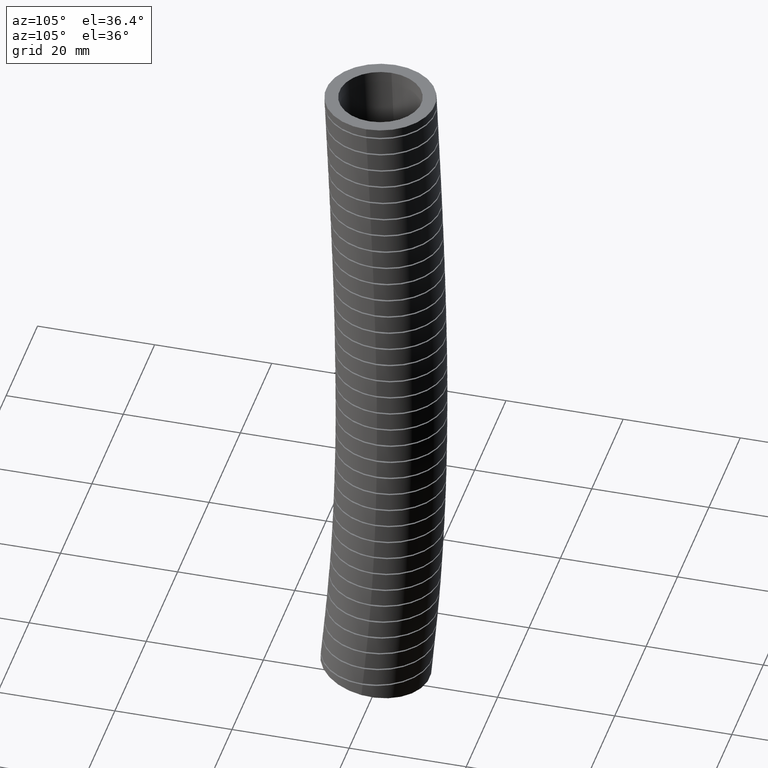
[diagram: clean part render]
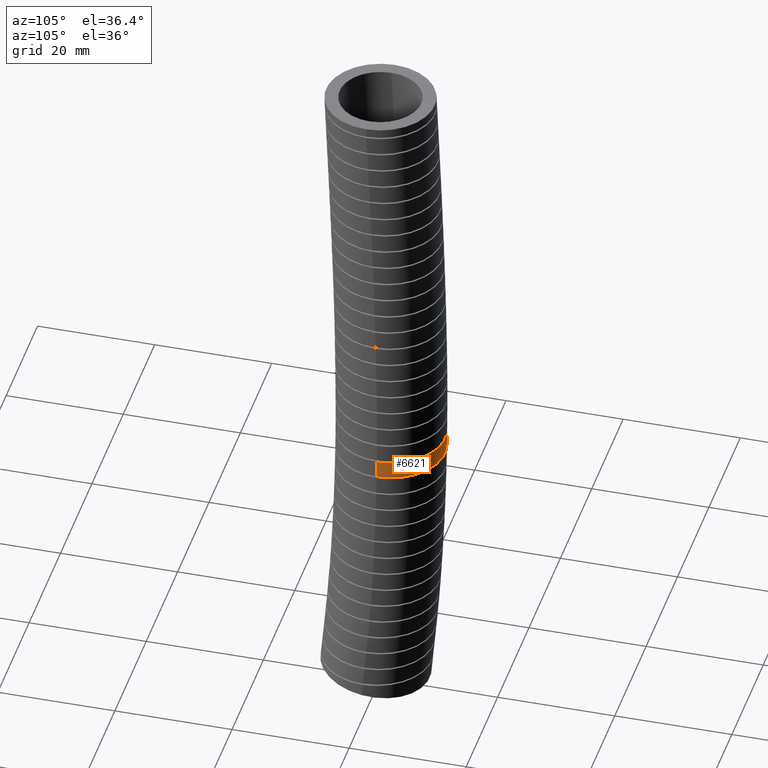
[diagram: same view with one face highlighted and labeled with its STEP entity id]
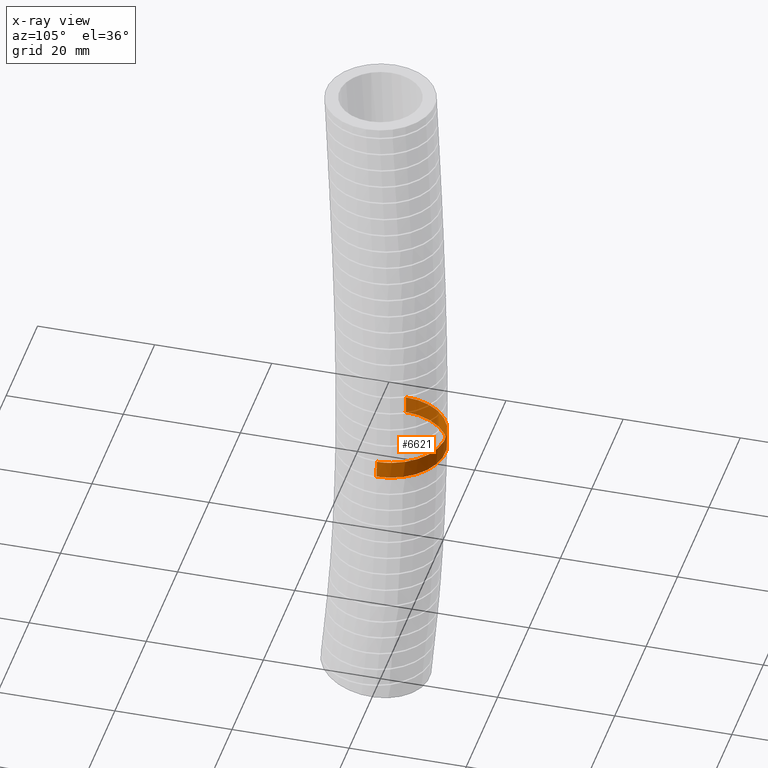
[diagram: x-ray of the same camera — body ghosted, the highlighted face saturated]
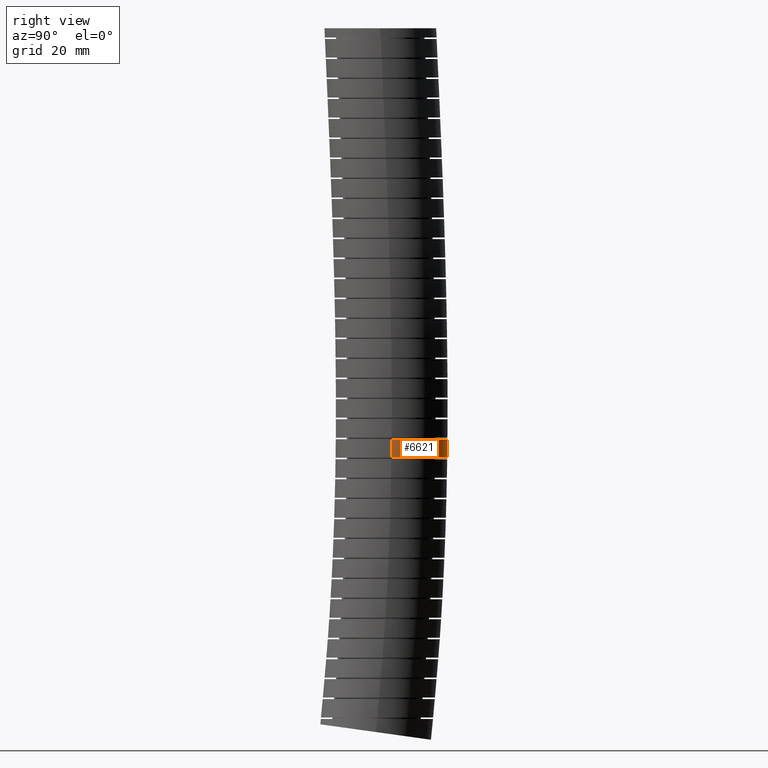
[diagram: same view with one face highlighted and labeled with its STEP entity id]
A machine part, auxiliary view. The second image highlights one B-rep face of the part: STEP entity #6621.
The next image is the same camera in x-ray: the body ghosted, the highlighted face saturated — about 29% of this face is hidden behind the body in this view.
A second angle (right view) of the same face is appended — the face is thin or edge-on in the first view.
In plain terms, the highlighted face is a freeform B-spline surface patch.
Its self-contained STEP definition (entity closure, byte-faithful):
#1 = VERTEX_POINT ( 'NONE', #936 ) ;
#2 = VERTEX_POINT ( 'NONE', #935 ) ;
#935 = CARTESIAN_POINT ( 'NONE',  ( 0.3649999999999999400, 0.07320606617404441800, -2.668720354668374700 ) ) ;
#936 = CARTESIAN_POINT ( 'NONE',  ( -0.3649999999999999900, 0.07320606617709402000, -2.668720354488106000 ) ) ;
#6606 = ORIENTED_EDGE ( 'NONE', *, *, #6613, .T. ) ;
#6608 = EDGE_LOOP ( 'NONE', ( #6612, #6606, #6611, #14719 ) ) ;
#6611 = ORIENTED_EDGE ( 'NONE', *, *, #18283, .T. ) ;
#6612 = ORIENTED_EDGE ( 'NONE', *, *, #18404, .F. ) ;
#6613 = EDGE_CURVE ( 'NONE', #1, #2, #12066, .T. ) ;
#6621 = ADVANCED_FACE ( 'NONE', ( #12212 ), #12268, .T. ) ;
#12066 = B_SPLINE_CURVE_WITH_KNOTS ( 'NONE', 3,
 ( #12136, #12135, #12134, #12133, #12132, #12131, #12130, #12129, #12128, #12127, #12126, #12125, #12124, #12123, #12122, #12121, #12120, #12119, #12118, #12117, #12116, #12115, #12114, #12113, #12112, #12111, #12181, #12180, #12179, #12178, #12177, #12176, #12175, #12174, #12173, #12172, #12171, #12170, #12169, #12168, #12167, #12166, #12165, #12164, #12163, #12162, #12161 ),
 .UNSPECIFIED., .F., .F.,
 ( 4, 2, 2, 2, 2, 2, 2, 2, 2, 2, 2, 1, 2, 2, 2, 2, 2, 2, 2, 2, 2, 2, 2, 4 ),
 ( 0.02927975161548969700, 0.03019481706856797000, 0.03110988252164624500, 0.03294001342780279000, 0.03477014433395934200, 0.03568520978703761800, 0.03660027524011588700, 0.03843040614627243900, 0.04026053705242899100, 0.04209066795858554300, 0.04300573341166381800, 0.04392079886474209400, 0.04483586431782037000, 0.04575092977089864600, 0.04758106067705520500, 0.04849612613013348100, 0.04941119158321175700, 0.05124132248936831600, 0.05215638794244659100, 0.05307145339552486700, 0.05490158430168141900, 0.05673171520783798500, 0.05764678066091626100, 0.05856184611399453700 ),
 .UNSPECIFIED. ) ;
#12111 = CARTESIAN_POINT ( 'NONE',  ( 0.05941850687262208200, 0.4331649458857727000, -2.668720354488106800 ) ) ;
#12112 = CARTESIAN_POINT ( 'NONE',  ( 0.04749589015965257500, 0.4349248595266277400, -2.668720354488104600 ) ) ;
#12113 = CARTESIAN_POINT ( 'NONE',  ( 0.02375430045063952500, 0.4372508819194463300, -2.668720354488104600 ) ) ;
#12114 = CARTESIAN_POINT ( 'NONE',  ( 4.027529231596551600E-006, 0.4384068036296945900, -2.668720354488102900 ) ) ;
#12115 = CARTESIAN_POINT ( 'NONE',  ( -0.02376340153715641700, 0.4372508600954948500, -2.668720354488104200 ) ) ;
#12116 = CARTESIAN_POINT ( 'NONE',  ( -0.04753955170522802800, 0.4349197101323114500, -2.668720354488104200 ) ) ;
#12117 = CARTESIAN_POINT ( 'NONE',  ( -0.05949774454792206700, 0.4331510362782838900, -2.668720354488107300 ) ) ;
#12118 = CARTESIAN_POINT ( 'NONE',  ( -0.09476493677838504500, 0.4261383699074591200, -2.668720354488106800 ) ) ;
#12119 = CARTESIAN_POINT ( 'NONE',  ( -0.1175129830525072100, 0.4192325297033180900, -2.668720354488106400 ) ) ;
#12120 = CARTESIAN_POINT ( 'NONE',  ( -0.1615134997035402000, 0.4010507176765552000, -2.668720354488106800 ) ) ;
#12121 = CARTESIAN_POINT ( 'NONE',  ( -0.1829467531072731200, 0.3896169040247807200, -2.668720354488104200 ) ) ;
#12122 = CARTESIAN_POINT ( 'NONE',  ( -0.2225913090509502300, 0.3631568275315265600, -2.668720354488104600 ) ) ;
#12123 = CARTESIAN_POINT ( 'NONE',  ( -0.2409796241373040300, 0.3481047620946218200, -2.668720354488108200 ) ) ;
#12124 = CARTESIAN_POINT ( 'NONE',  ( -0.2663849269867669700, 0.3227603004738652800, -2.668720354488106800 ) ) ;
#12125 = CARTESIAN_POINT ( 'NONE',  ( -0.2745191004397128400, 0.3138027094918401400, -2.668720354488107300 ) ) ;
#12126 = CARTESIAN_POINT ( 'NONE',  ( -0.2897143563914030800, 0.2953114625587307500, -2.668720354488107300 ) ) ;
#12127 = CARTESIAN_POINT ( 'NONE',  ( -0.2968127331542611000, 0.2857479714421067300, -2.668720354488104600 ) ) ;
#12128 = CARTESIAN_POINT ( 'NONE',  ( -0.3166410927686716900, 0.2561236216483556100, -2.668720354488105100 ) ) ;
#12129 = CARTESIAN_POINT ( 'NONE',  ( -0.3279337716689496000, 0.2351019868282232000, -2.668720354488104600 ) ) ;
#12130 = CARTESIAN_POINT ( 'NONE',  ( -0.3463968159717063500, 0.1906202841395762100, -2.668720354488105100 ) ) ;
#12131 = CARTESIAN_POINT ( 'NONE',  ( -0.3532957554398851200, 0.1678339095988528600, -2.668720354488105100 ) ) ;
#12132 = CARTESIAN_POINT ( 'NONE',  ( -0.3602771294218495300, 0.1328668962521809300, -2.668720354488104600 ) ) ;
#12133 = CARTESIAN_POINT ( 'NONE',  ( -0.3620389377832694500, 0.1210790141085834500, -2.668720354488104200 ) ) ;
#12134 = CARTESIAN_POINT ( 'NONE',  ( -0.3644041422518805600, 0.09723233091239176500, -2.668720354488102900 ) ) ;
#12135 = CARTESIAN_POINT ( 'NONE',  ( -0.3649999999999999900, 0.08515444808171307400, -2.668720354488105100 ) ) ;
#12136 = CARTESIAN_POINT ( 'NONE',  ( -0.3649999999999999900, 0.07320606617709402000, -2.668720354488106000 ) ) ;
#12161 = CARTESIAN_POINT ( 'NONE',  ( 0.3649999999999999400, 0.07320606617404441800, -2.668720354668374700 ) ) ;
#12162 = CARTESIAN_POINT ( 'NONE',  ( 0.3649999999999999400, 0.08525643554184268700, -2.668720354668375500 ) ) ;
#12163 = CARTESIAN_POINT ( 'NONE',  ( 0.3643978862681134200, 0.09731436780108915200, -2.668720354488106400 ) ) ;
#12164 = CARTESIAN_POINT ( 'NONE',  ( 0.3620339033328604500, 0.1211107198265952300, -2.668720354488106000 ) ) ;
#12165 = CARTESIAN_POINT ( 'NONE',  ( 0.3602741392829231200, 0.1328838871986791300, -2.668720354488104200 ) ) ;
#12166 = CARTESIAN_POINT ( 'NONE',  ( 0.3532946279497059000, 0.1678355246992258000, -2.668720354488104200 ) ) ;
#12167 = CARTESIAN_POINT ( 'NONE',  ( 0.3463572472116045500, 0.1907312428955710800, -2.668720354488106000 ) ) ;
#12168 = CARTESIAN_POINT ( 'NONE',  ( 0.3279035939240557700, 0.2351590041796645400, -2.668720354488106400 ) ) ;
#12169 = CARTESIAN_POINT ( 'NONE',  ( 0.3166420990251984100, 0.2561232757387369400, -2.668720354488108600 ) ) ;
#12170 = CARTESIAN_POINT ( 'NONE',  ( 0.2968039906385580000, 0.2857604540054544700, -2.668720354488108200 ) ) ;
#12171 = CARTESIAN_POINT ( 'NONE',  ( 0.2896967114145990200, 0.2953357650423634700, -2.668720354488104200 ) ) ;
#12172 = CARTESIAN_POINT ( 'NONE',  ( 0.2744671888176017900, 0.3138630381174330500, -2.668720354488104600 ) ) ;
#12173 = CARTESIAN_POINT ( 'NONE',  ( 0.2663419256355798500, 0.3228050821306274700, -2.668720354488107300 ) ) ;
#12174 = CARTESIAN_POINT ( 'NONE',  ( 0.2409789567001493200, 0.3481016516905077700, -2.668720354488107300 ) ) ;
#12175 = CARTESIAN_POINT ( 'NONE',  ( 0.2225980981113263600, 0.3631541609906983000, -2.668720354488107300 ) ) ;
#12176 = CARTESIAN_POINT ( 'NONE',  ( 0.1928248813193954600, 0.3830229836320413500, -2.668720354488106800 ) ) ;
#12177 = CARTESIAN_POINT ( 'NONE',  ( 0.1824753166941955300, 0.3892194979686181600, -2.668720354488107300 ) ) ;
#12178 = CARTESIAN_POINT ( 'NONE',  ( 0.1612891979380700100, 0.4005172397076918200, -2.668720354488106800 ) ) ;
#12179 = CARTESIAN_POINT ( 'NONE',  ( 0.1504944079907398500, 0.4056043746105504900, -2.668720354488106000 ) ) ;
#12180 = CARTESIAN_POINT ( 'NONE',  ( 0.1175219154949746600, 0.4192281016550825100, -2.668720354488106000 ) ) ;
#12181 = CARTESIAN_POINT ( 'NONE',  ( 0.09476171899900251400, 0.4261426897450509300, -2.668720354488106400 ) ) ;
#12212 = FACE_OUTER_BOUND ( 'NONE', #6608, .T. ) ;
#12252 = CARTESIAN_POINT ( 'NONE',  ( 0.3649999999999999400, -0.7359236101691065700, -4.286093855751774500 ) ) ;
#12253 = CARTESIAN_POINT ( 'NONE',  ( 0.3649999999999999400, -0.6758776721496178000, -3.642438175109354900 ) ) ;
#12254 = CARTESIAN_POINT ( 'NONE',  ( 0.3649999999999999400, -0.6315701818301539000, -2.170594311010786800 ) ) ;
#12255 = CARTESIAN_POINT ( 'NONE',  ( 0.3649999999999999400, -0.6915845056021706600, -0.8471462727962260100 ) ) ;
#12256 = CARTESIAN_POINT ( 'NONE',  ( 0.3649999999999999400, -0.7299999999999998700, 0.0000000000000000000 ) ) ;
#12257 = CARTESIAN_POINT ( 'NONE',  ( 0.3649999999999999900, -0.03000000000000001300, -4.570000000000000300 ) ) ;
#12258 = CARTESIAN_POINT ( 'NONE',  ( 0.3649999999999999900, -0.01223079473036816800, -4.380045502980629600 ) ) ;
#12259 = CARTESIAN_POINT ( 'NONE',  ( 0.3649999999999999900, 0.05024477800268264300, -3.712175679067584200 ) ) ;
#12260 = CARTESIAN_POINT ( 'NONE',  ( 0.3649999999999999400, 0.09930665703747126900, -2.190454472439184600 ) ) ;
#12261 = CARTESIAN_POINT ( 'NONE',  ( 0.3649999999999999900, 0.03875770978777286900, -0.8548973581307141000 ) ) ;
#12262 = CARTESIAN_POINT ( 'NONE',  ( 0.3649999999999999900, 0.0000000000000000000, 0.0000000000000000000 ) ) ;
#12268 =( BOUNDED_SURFACE ( )  B_SPLINE_SURFACE ( 3, 3, ( 
 ( #12262, #12261, #12260, #12259, #12258, #12257 ),
 ( #12256, #12255, #12254, #12253, #12252, #12307 ),
 ( #12306, #12305, #12304, #12303, #12302, #12301 ),
 ( #12300, #12299, #12298, #12297, #12296, #12295 ),
 ( #12294, #12293, #12292, #12291, #12290, #12289 ),
 ( #12288, #12287, #12286, #12285, #12284, #12283 ),
 ( #12282, #12281, #12280, #12279, #12278, #12277 ) ),
 .UNSPECIFIED., .F., .F., .F. ) 
 B_SPLINE_SURFACE_WITH_KNOTS ( ( 4, 3, 4 ),
 ( 4, 1, 1, 4 ),
 ( 0.0000000000000000000, 0.5000000000000000000, 1.000000000000000000 ),
 ( 0.0000000000000000000, 0.5600000000000000500, 0.8748558840421495300, 1.000000000000000000 ),
 .UNSPECIFIED. ) 
 GEOMETRIC_REPRESENTATION_ITEM ( )  RATIONAL_B_SPLINE_SURFACE ( (
 ( 1.000000000000000000, 1.000000000000000000, 1.000000000000000000, 1.000000000000000000, 1.000000000000000000, 1.000000000000000000),
 ( 0.3333333333333333100, 0.3333333333333333100, 0.3333333333333333100, 0.3333333333333333100, 0.3333333333333333100, 0.3333333333333333100),
 ( 0.3333333333333333100, 0.3333333333333333100, 0.3333333333333333100, 0.3333333333333333100, 0.3333333333333333100, 0.3333333333333333100),
 ( 1.000000000000000000, 1.000000000000000000, 1.000000000000000000, 1.000000000000000000, 1.000000000000000000, 1.000000000000000000),
 ( 0.3333333333333333100, 0.3333333333333333100, 0.3333333333333333100, 0.3333333333333333100, 0.3333333333333333100, 0.3333333333333333100),
 ( 0.3333333333333333100, 0.3333333333333333100, 0.3333333333333333100, 0.3333333333333333100, 0.3333333333333333100, 0.3333333333333333100),
 ( 1.000000000000000000, 1.000000000000000000, 1.000000000000000000, 1.000000000000000000, 1.000000000000000000, 1.000000000000000000) ) ) 
 REPRESENTATION_ITEM ( '' )  SURFACE ( )  );
#12277 = CARTESIAN_POINT ( 'NONE',  ( 0.3649999999999999900, -0.03000000000000001300, -4.570000000000000300 ) ) ;
#12278 = CARTESIAN_POINT ( 'NONE',  ( 0.3649999999999999900, -0.01223079473036816800, -4.380045502980629600 ) ) ;
#12279 = CARTESIAN_POINT ( 'NONE',  ( 0.3649999999999999900, 0.05024477800268264300, -3.712175679067584200 ) ) ;
#12280 = CARTESIAN_POINT ( 'NONE',  ( 0.3649999999999999400, 0.09930665703747126900, -2.190454472439184600 ) ) ;
#12281 = CARTESIAN_POINT ( 'NONE',  ( 0.3649999999999999900, 0.03875770978777286900, -0.8548973581307141000 ) ) ;
#12282 = CARTESIAN_POINT ( 'NONE',  ( 0.3649999999999999900, 0.0000000000000000000, 0.0000000000000000000 ) ) ;
#12283 = CARTESIAN_POINT ( 'NONE',  ( 0.3649999999999999400, 0.6930017825107170900, -4.670838596213580600 ) ) ;
#12284 = CARTESIAN_POINT ( 'NONE',  ( 0.3649999999999999400, 0.7114620207083701700, -4.473997150209484600 ) ) ;
#12285 = CARTESIAN_POINT ( 'NONE',  ( 0.3649999999999999400, 0.7763672281549830500, -3.781913183025811700 ) ) ;
#12286 = CARTESIAN_POINT ( 'NONE',  ( 0.3649999999999999400, 0.8301834959050966600, -2.210314633867584100 ) ) ;
#12287 = CARTESIAN_POINT ( 'NONE',  ( 0.3649999999999999400, 0.7690999251777161900, -0.8626484434652025300 ) ) ;
#12288 = CARTESIAN_POINT ( 'NONE',  ( 0.3649999999999999400, 0.7299999999999998700, 0.0000000000000000000 ) ) ;
#12289 = CARTESIAN_POINT ( 'NONE',  ( -0.3649999999999999400, 0.6930017825107170900, -4.670838596213580600 ) ) ;
#12290 = CARTESIAN_POINT ( 'NONE',  ( -0.3649999999999998800, 0.7114620207083701700, -4.473997150209484600 ) ) ;
#12291 = CARTESIAN_POINT ( 'NONE',  ( -0.3649999999999998800, 0.7763672281549830500, -3.781913183025811700 ) ) ;
#12292 = CARTESIAN_POINT ( 'NONE',  ( -0.3649999999999999400, 0.8301834959050966600, -2.210314633867584100 ) ) ;
#12293 = CARTESIAN_POINT ( 'NONE',  ( -0.3649999999999999400, 0.7690999251777161900, -0.8626484434652025300 ) ) ;
#12294 = CARTESIAN_POINT ( 'NONE',  ( -0.3649999999999999400, 0.7299999999999998700, 0.0000000000000000000 ) ) ;
#12295 = CARTESIAN_POINT ( 'NONE',  ( -0.3649999999999999900, -0.02999999999999997100, -4.570000000000000300 ) ) ;
#12296 = CARTESIAN_POINT ( 'NONE',  ( -0.3649999999999999900, -0.01223079473036812700, -4.380045502980629600 ) ) ;
#12297 = CARTESIAN_POINT ( 'NONE',  ( -0.3649999999999999900, 0.05024477800268267700, -3.712175679067584200 ) ) ;
#12298 = CARTESIAN_POINT ( 'NONE',  ( -0.3649999999999999400, 0.09930665703747128300, -2.190454472439184600 ) ) ;
#12299 = CARTESIAN_POINT ( 'NONE',  ( -0.3649999999999999900, 0.03875770978777290400, -0.8548973581307141000 ) ) ;
#12300 = CARTESIAN_POINT ( 'NONE',  ( -0.3649999999999999900, 4.469960816887839200E-017, 0.0000000000000000000 ) ) ;
#12301 = CARTESIAN_POINT ( 'NONE',  ( -0.3650000000000001000, -0.7530017825107172500, -4.469161403786418200 ) ) ;
#12302 = CARTESIAN_POINT ( 'NONE',  ( -0.3650000000000001000, -0.7359236101691065700, -4.286093855751774500 ) ) ;
#12303 = CARTESIAN_POINT ( 'NONE',  ( -0.3650000000000001000, -0.6758776721496178000, -3.642438175109354900 ) ) ;
#12304 = CARTESIAN_POINT ( 'NONE',  ( -0.3650000000000001000, -0.6315701818301539000, -2.170594311010786800 ) ) ;
#12305 = CARTESIAN_POINT ( 'NONE',  ( -0.3650000000000001000, -0.6915845056021706600, -0.8471462727962260100 ) ) ;
#12306 = CARTESIAN_POINT ( 'NONE',  ( -0.3650000000000001000, -0.7299999999999998700, 0.0000000000000000000 ) ) ;
#12307 = CARTESIAN_POINT ( 'NONE',  ( 0.3649999999999999400, -0.7530017825107172500, -4.469161403786418200 ) ) ;
#12774 = B_SPLINE_CURVE_WITH_KNOTS ( 'NONE', 3,
 ( #12791, #12790, #12789, #12788, #12787, #12786, #12785, #12784, #12783, #12782, #12781, #12780, #12779, #12778, #12777, #12776, #12853, #12852, #12851, #12850, #12849, #12848, #12847, #12846, #12845, #12844, #12843, #12842, #12841, #12840, #12839, #12838, #12837, #12836, #12835, #12834, #12833, #12832, #12831, #12830, #12829, #12828, #12827, #12826, #12825 ),
 .UNSPECIFIED., .F., .F.,
 ( 4, 2, 2, 2, 2, 2, 2, 2, 1, 2, 2, 2, 2, 2, 2, 2, 2, 2, 2, 2, 2, 2, 4 ),
 ( 0.0000000000000000000, 0.001810638577877081700, 0.002715957866815621600, 0.003621277155754161700, 0.005431915733631246700, 0.007242554311508333000, 0.009053192889385417600, 0.009958512178323957300, 0.01086383146726249900, 0.01176915075620104000, 0.01267447004513958000, 0.01448510862301666400, 0.01539042791195520400, 0.01629574720089374500, 0.01810638577877082800, 0.01901170506770936600, 0.01991702435664790800, 0.02172766293452499000, 0.02353830151240207300, 0.02444362080134061100, 0.02534894009027914900, 0.02715957866815622800, 0.02897021724603330800 ),
 .UNSPECIFIED. ) ;
#12776 = CARTESIAN_POINT ( 'NONE',  ( 0.1613771586470543500, 0.3991516024985690700, -2.788712450054409600 ) ) ;
#12777 = CARTESIAN_POINT ( 'NONE',  ( 0.1824471203262199600, 0.3879136044247550300, -2.788712450054409600 ) ) ;
#12778 = CARTESIAN_POINT ( 'NONE',  ( 0.1928133804100416200, 0.3817131561466745600, -2.788712450054411400 ) ) ;
#12779 = CARTESIAN_POINT ( 'NONE',  ( 0.2227475489098403900, 0.3617314732618542300, -2.788712450054411400 ) ) ;
#12780 = CARTESIAN_POINT ( 'NONE',  ( 0.2411301921653098100, 0.3466437861086684200, -2.788712450054408300 ) ) ;
#12781 = CARTESIAN_POINT ( 'NONE',  ( 0.2748221476211170100, 0.3130179215072939600, -2.788712450054409200 ) ) ;
#12782 = CARTESIAN_POINT ( 'NONE',  ( 0.2902488200393152900, 0.2942549680580812700, -2.788712450054410000 ) ) ;
#12783 = CARTESIAN_POINT ( 'NONE',  ( 0.3167597465813892200, 0.2546130022651851800, -2.788712450054409600 ) ) ;
#12784 = CARTESIAN_POINT ( 'NONE',  ( 0.3279816584851427700, 0.2336650731757171600, -2.788712450054409600 ) ) ;
#12785 = CARTESIAN_POINT ( 'NONE',  ( 0.3417362792789431800, 0.2005372876406187300, -2.788712450054408300 ) ) ;
#12786 = CARTESIAN_POINT ( 'NONE',  ( 0.3458190585295540800, 0.1891477426769059300, -2.788712450054409200 ) ) ;
#12787 = CARTESIAN_POINT ( 'NONE',  ( 0.3527755800015383000, 0.1662288011785658400, -2.788712450054409200 ) ) ;
#12788 = CARTESIAN_POINT ( 'NONE',  ( 0.3556685416550611200, 0.1546696283060568200, -2.788712450054409200 ) ) ;
#12789 = CARTESIAN_POINT ( 'NONE',  ( 0.3626306693017535300, 0.1196996705670998100, -2.788712450054408300 ) ) ;
#12790 = CARTESIAN_POINT ( 'NONE',  ( 0.3649999999999998800, 0.09599932914178054000, -2.788712449863141300 ) ) ;
#12791 = CARTESIAN_POINT ( 'NONE',  ( 0.3649999999999999400, 0.07189538670531546400, -2.788712449863142600 ) ) ;
#12825 = CARTESIAN_POINT ( 'NONE',  ( -0.3649999999999999400, 0.07189538670018008600, -2.788712450054409200 ) ) ;
#12826 = CARTESIAN_POINT ( 'NONE',  ( -0.3649999999999999400, 0.09570501310133391900, -2.788712450054407800 ) ) ;
#12827 = CARTESIAN_POINT ( 'NONE',  ( -0.3626100997047789200, 0.1198852056122456100, -2.788712450054410500 ) ) ;
#12828 = CARTESIAN_POINT ( 'NONE',  ( -0.3532719183943631200, 0.1666245166160695300, -2.788712450054410000 ) ) ;
#12829 = CARTESIAN_POINT ( 'NONE',  ( -0.3463663407925564600, 0.1893654132616797200, -2.788712450054409200 ) ) ;
#12830 = CARTESIAN_POINT ( 'NONE',  ( -0.3326124055574942700, 0.2225221387637171500, -2.788712450054409200 ) ) ;
#12831 = CARTESIAN_POINT ( 'NONE',  ( -0.3274289950164996400, 0.2334575928118310400, -2.788712450054407800 ) ) ;
#12832 = CARTESIAN_POINT ( 'NONE',  ( -0.3161227492158137400, 0.2545506360227942600, -2.788712450054409200 ) ) ;
#12833 = CARTESIAN_POINT ( 'NONE',  ( -0.3099849555681823400, 0.2647571334954139700, -2.788712450054410500 ) ) ;
#12834 = CARTESIAN_POINT ( 'NONE',  ( -0.2901479641106745100, 0.2943778820578419900, -2.788712450054410000 ) ) ;
#12835 = CARTESIAN_POINT ( 'NONE',  ( -0.2750067503059491800, 0.3128355542477273500, -2.788712450054409600 ) ) ;
#12836 = CARTESIAN_POINT ( 'NONE',  ( -0.2409171402541653600, 0.3468545452238934700, -2.788712450054409600 ) ) ;
#12837 = CARTESIAN_POINT ( 'NONE',  ( -0.2224795904340517700, 0.3619186877512604000, -2.788712450054412300 ) ) ;
#12838 = CARTESIAN_POINT ( 'NONE',  ( -0.1928140650540339200, 0.3817084976346704100, -2.788712450054412300 ) ) ;
#12839 = CARTESIAN_POINT ( 'NONE',  ( -0.1825882162906686000, 0.3878339119786369200, -2.788712450054410000 ) ) ;
#12840 = CARTESIAN_POINT ( 'NONE',  ( -0.1614455012889965100, 0.3991195438147413000, -2.788712450054410000 ) ) ;
#12841 = CARTESIAN_POINT ( 'NONE',  ( -0.1505079772442473000, 0.4042801917118599200, -2.788712450054408300 ) ) ;
#12842 = CARTESIAN_POINT ( 'NONE',  ( -0.1173731494261449100, 0.4179659554953298300, -2.788712450054408300 ) ) ;
#12843 = CARTESIAN_POINT ( 'NONE',  ( -0.09462880843063140000, 0.4248460563238712900, -2.788712450054407400 ) ) ;
#12844 = CARTESIAN_POINT ( 'NONE',  ( -0.05953677796518440400, 0.4318217301454506100, -2.788712450054407400 ) ) ;
#12845 = CARTESIAN_POINT ( 'NONE',  ( -0.04762337647250276100, 0.4335901786934577300, -2.788712450054412700 ) ) ;
#12846 = CARTESIAN_POINT ( 'NONE',  ( -0.02370225888120268100, 0.4359362307377103200, -2.788712450054412300 ) ) ;
#12847 = CARTESIAN_POINT ( 'NONE',  ( -0.01177369761886984400, 0.4365118287954545300, -2.788712450054409600 ) ) ;
#12848 = CARTESIAN_POINT ( 'NONE',  ( 0.02391885329928559000, 0.4364997332956080400, -2.788712450054409600 ) ) ;
#12849 = CARTESIAN_POINT ( 'NONE',  ( 0.04759059575747137000, 0.4341896864879322100, -2.788712450054407400 ) ) ;
#12850 = CARTESIAN_POINT ( 'NONE',  ( 0.08290832258135810700, 0.4271792266635942600, -2.788712450054408300 ) ) ;
#12851 = CARTESIAN_POINT ( 'NONE',  ( 0.09461767964662394500, 0.4242456147631047900, -2.788712450054407800 ) ) ;
#12852 = CARTESIAN_POINT ( 'NONE',  ( 0.1174621355508005000, 0.4173168724413431300, -2.788712450054407800 ) ) ;
#12853 = CARTESIAN_POINT ( 'NONE',  ( 0.1398600823902626800, 0.4093038088925254900, -2.788712450054412300 ) ) ;
#14717 = EDGE_CURVE ( 'NONE', #18277, #18290, #12774, .T. ) ;
#14719 = ORIENTED_EDGE ( 'NONE', *, *, #14717, .T. ) ;
#15289 = CARTESIAN_POINT ( 'NONE',  ( -0.3649999999999999400, 0.07189538670018008600, -2.788712450054409200 ) ) ;
#15295 = CARTESIAN_POINT ( 'NONE',  ( 0.3649999999999999400, 0.07189538670531546400, -2.788712449863142600 ) ) ;
#15296 = CARTESIAN_POINT ( 'NONE',  ( 0.3649999999999999400, 0.07243228232198444000, -2.748719212009767900 ) ) ;
#15297 = CARTESIAN_POINT ( 'NONE',  ( 0.3649999999999999400, 0.07286771807542884200, -2.708721786796188400 ) ) ;
#15298 = CARTESIAN_POINT ( 'NONE',  ( 0.3649999999999999400, 0.07320606617404441800, -2.668720354668374700 ) ) ;
#15300 = B_SPLINE_CURVE_WITH_KNOTS ( 'NONE', 3,
 ( #15298, #15297, #15296, #15295 ),
 .UNSPECIFIED., .F., .F.,
 ( 4, 4 ),
 ( 0.5831459622661386800, 0.6094071599735051400 ),
 .UNSPECIFIED. ) ;
#15301 = CARTESIAN_POINT ( 'NONE',  ( 0.3649999999999999400, 0.07189538670531546400, -2.788712449863142600 ) ) ;
#16623 = CARTESIAN_POINT ( 'NONE',  ( -0.3649999999999999400, 0.07189538670018008600, -2.788712450054409200 ) ) ;
#16624 = CARTESIAN_POINT ( 'NONE',  ( -0.3649999999999999900, 0.07243228232140248900, -2.748719212077233000 ) ) ;
#16625 = CARTESIAN_POINT ( 'NONE',  ( -0.3649999999999999900, 0.07286771807619769900, -2.708721786739792600 ) ) ;
#16626 = CARTESIAN_POINT ( 'NONE',  ( -0.3649999999999999900, 0.07320606617709402000, -2.668720354488106000 ) ) ;
#16627 = B_SPLINE_CURVE_WITH_KNOTS ( 'NONE', 3,
 ( #16626, #16625, #16624, #16623 ),
 .UNSPECIFIED., .F., .F.,
 ( 4, 4 ),
 ( 0.5831459622266866900, 0.6094071600153772000 ),
 .UNSPECIFIED. ) ;
#18277 = VERTEX_POINT ( 'NONE', #15301 ) ;
#18283 = EDGE_CURVE ( 'NONE', #2, #18277, #15300, .T. ) ;
#18290 = VERTEX_POINT ( 'NONE', #15289 ) ;
#18404 = EDGE_CURVE ( 'NONE', #1, #18290, #16627, .T. ) ;